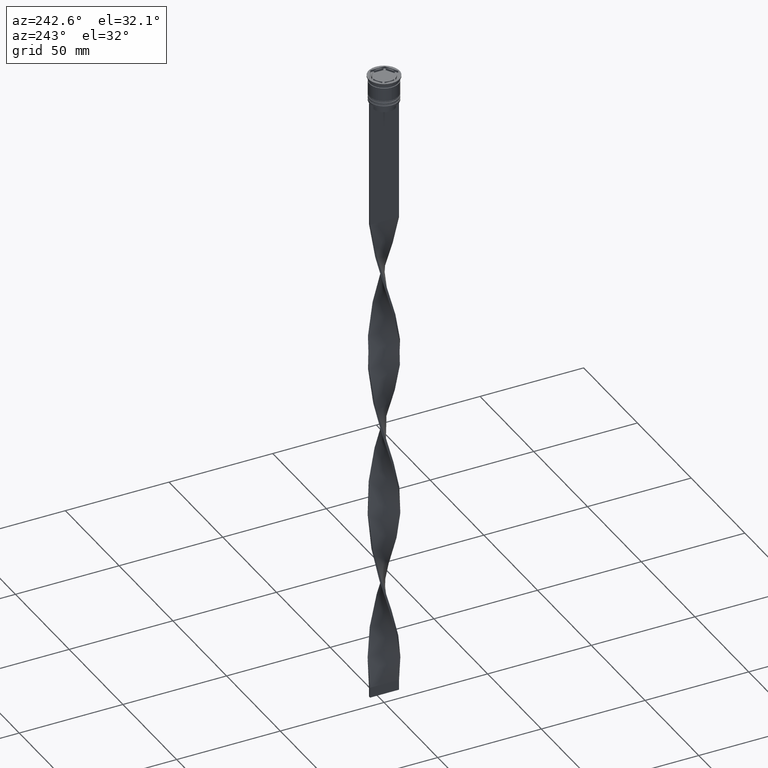
[diagram: clean part render]
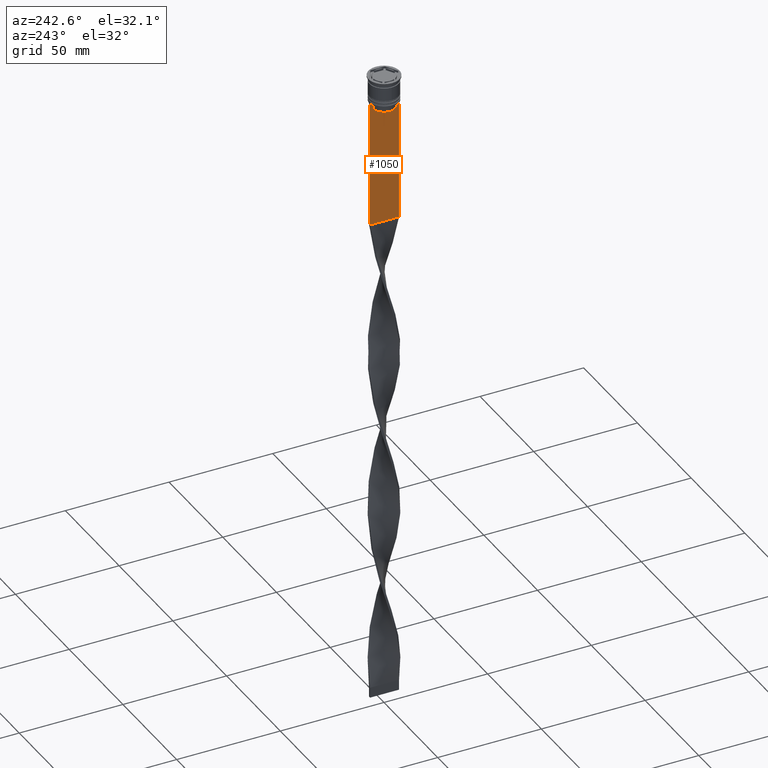
[diagram: same view with one face highlighted and labeled with its STEP entity id]
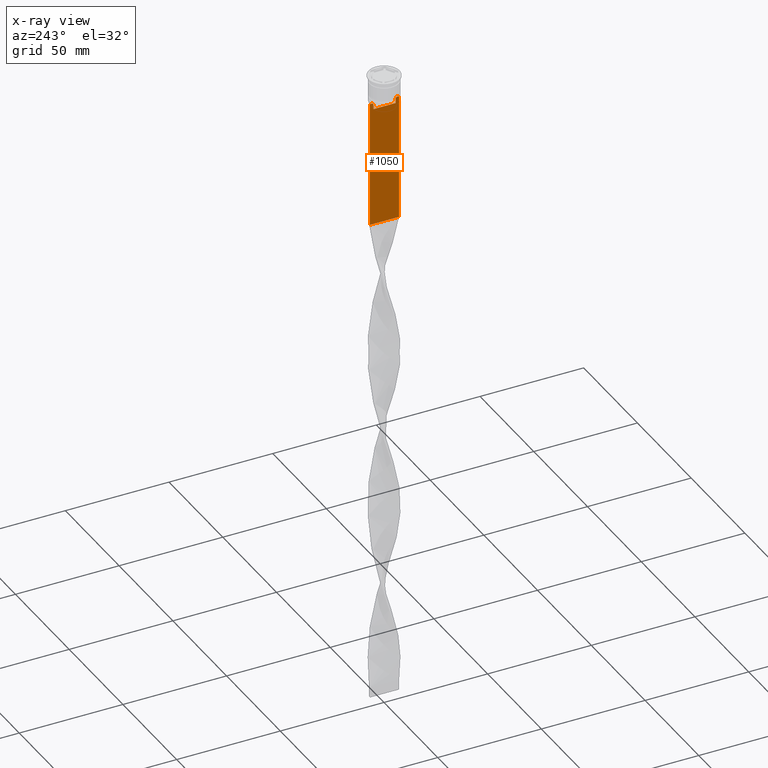
[diagram: x-ray of the same camera — body ghosted, the highlighted face saturated]
A machine part, auxiliary view. The second image highlights one B-rep face of the part: STEP entity #1050.
The next image is the same camera in x-ray: the body ghosted, the highlighted face saturated — about 0% of this face is hidden behind the body in this view.
In plain terms, the highlighted planar face has unit normal (-1, 0, 0).
Its self-contained STEP definition (entity closure, byte-faithful):
#34 = CARTESIAN_POINT ( 'NONE',  ( -0.5000000000000000000, -6.999999999999997335, -12.50000000000000000 ) ) ;
#41 = VERTEX_POINT ( 'NONE', #1005 ) ;
#118 = CARTESIAN_POINT ( 'NONE',  ( -0.5000000000000000000, -5.376802023508029826, -15.50000000000000000 ) ) ;
#153 = CARTESIAN_POINT ( 'NONE',  ( -0.5000000000000000000, -6.999999999999997335, 1.535668847618198329 ) ) ;
#210 = CARTESIAN_POINT ( 'NONE',  ( -0.5000000000000000000, 7.000000000000002665, -73.50000000000001421 ) ) ;
#217 = VERTEX_POINT ( 'NONE', #654 ) ;
#234 = EDGE_CURVE ( 'NONE', #829, #2222, #3152, .T. ) ;
#239 = VERTEX_POINT ( 'NONE', #4103 ) ;
#272 = DIRECTION ( 'NONE',  ( 0.000000000000000000, 1.000000000000000000, 0.000000000000000000 ) ) ;
#278 = ORIENTED_EDGE ( 'NONE', *, *, #234, .F. ) ;
#293 = LINE ( 'NONE', #2474, #2744 ) ;
#309 = VERTEX_POINT ( 'NONE', #1115 ) ;
#318 = DIRECTION ( 'NONE',  ( 0.000000000000000000, 0.000000000000000000, -1.000000000000000000 ) ) ;
#378 = VECTOR ( 'NONE', #2174, 1000.000000000000000 ) ;
#379 = ORIENTED_EDGE ( 'NONE', *, *, #2762, .F. ) ;
#422 = DIRECTION ( 'NONE',  ( -1.000000000000000000, 0.000000000000000000, 0.000000000000000000 ) ) ;
#525 = CARTESIAN_POINT ( 'NONE',  ( -0.5000000000000000000, -5.544156999454441959, -12.83336396790503642 ) ) ;
#548 = ORIENTED_EDGE ( 'NONE', *, *, #3273, .F. ) ;
#567 = EDGE_CURVE ( 'NONE', #702, #1053, #3036, .T. ) ;
#654 = CARTESIAN_POINT ( 'NONE',  ( -0.5000000000000000000, 7.000000000000002665, -12.50000000000000000 ) ) ;
#702 = VERTEX_POINT ( 'NONE', #3658 ) ;
#734 = B_SPLINE_CURVE_WITH_KNOTS ( 'NONE', 3,
 ( #3358, #525, #2723, #1777 ),
 .UNSPECIFIED., .F., .F.,
 ( 4, 4 ),
 ( 0.02539176325380714666, 0.02610162431828674801 ),
 .UNSPECIFIED. ) ;
#735 = FACE_OUTER_BOUND ( 'NONE', #3734, .T. ) ;
#761 = VECTOR ( 'NONE', #3349, 1000.000000000000000 ) ;
#829 = VERTEX_POINT ( 'NONE', #1189 ) ;
#842 = EDGE_CURVE ( 'NONE', #3542, #41, #3868, .T. ) ;
#895 = CARTESIAN_POINT ( 'NONE',  ( -0.5000000000000000000, -6.999999999999997335, -12.50000000000000000 ) ) ;
#1005 = CARTESIAN_POINT ( 'NONE',  ( -0.5000000000000000000, 5.376802023508029826, -13.00000000000000178 ) ) ;
#1050 = ADVANCED_FACE ( 'NONE', ( #735 ), #1714, .T. ) ;
#1053 = VERTEX_POINT ( 'NONE', #118 ) ;
#1115 = CARTESIAN_POINT ( 'NONE',  ( -0.5000000000000000000, -6.999999999999997335, -73.50000000000001421 ) ) ;
#1149 = CARTESIAN_POINT ( 'NONE',  ( -0.5000000000000000000, 5.711478846560141598, -12.66669470477064685 ) ) ;
#1189 = CARTESIAN_POINT ( 'NONE',  ( -0.5000000000000000000, -6.881860213634102053, -12.50000000000000000 ) ) ;
#1233 = DIRECTION ( 'NONE',  ( 0.000000000000000000, -1.000000000000000000, 0.000000000000000000 ) ) ;
#1399 = ORIENTED_EDGE ( 'NONE', *, *, #1908, .F. ) ;
#1609 = CARTESIAN_POINT ( 'NONE',  ( -0.5000000000000000000, -5.376802023508029826, 0.000000000000000000 ) ) ;
#1628 = EDGE_CURVE ( 'NONE', #217, #3090, #3651, .T. ) ;
#1683 = VECTOR ( 'NONE', #3769, 1000.000000000000000 ) ;
#1706 = DIRECTION ( 'NONE',  ( -0.000000000000000000, -0.000000000000000000, 1.000000000000000000 ) ) ;
#1714 = PLANE ( 'NONE',  #2066 ) ;
#1731 = VECTOR ( 'NONE', #3437, 1000.000000000000000 ) ;
#1777 = CARTESIAN_POINT ( 'NONE',  ( -0.5000000000000000000, -5.878775382679629402, -12.50000000000000000 ) ) ;
#1840 = LINE ( 'NONE', #1856, #1683 ) ;
#1855 = ORIENTED_EDGE ( 'NONE', *, *, #3417, .F. ) ;
#1856 = CARTESIAN_POINT ( 'NONE',  ( -0.5000000000000000000, 5.376802023508029826, 0.000000000000000000 ) ) ;
#1861 = CARTESIAN_POINT ( 'NONE',  ( -0.5000000000000000000, -5.376802023508029826, -13.00000000000000178 ) ) ;
#1908 = EDGE_CURVE ( 'NONE', #3698, #2071, #734, .T. ) ;
#1964 = CARTESIAN_POINT ( 'NONE',  ( -0.5000000000000000000, -6.999999999999997335, -12.50000000000000000 ) ) ;
#1978 = EDGE_CURVE ( 'NONE', #2071, #829, #2230, .T. ) ;
#2066 = AXIS2_PLACEMENT_3D ( 'NONE', #153, #422, #2947 ) ;
#2069 = CARTESIAN_POINT ( 'NONE',  ( -0.5000000000000000000, 5.878775382679629402, -12.50000000000000000 ) ) ;
#2071 = VERTEX_POINT ( 'NONE', #3707 ) ;
#2076 = CARTESIAN_POINT ( 'NONE',  ( -0.5000000000000000000, 7.000000000000002665, 1.535668847618198329 ) ) ;
#2082 = CARTESIAN_POINT ( 'NONE',  ( -0.5000000000000000000, 5.400000000000003908, -15.50000000000000000 ) ) ;
#2099 = ORIENTED_EDGE ( 'NONE', *, *, #1978, .F. ) ;
#2106 = CARTESIAN_POINT ( 'NONE',  ( -0.5000000000000000000, -6.999999999999997335, -73.50000000000001421 ) ) ;
#2120 = CARTESIAN_POINT ( 'NONE',  ( -0.5000000000000000000, 5.878775382679629402, -12.50000000000000000 ) ) ;
#2165 = ORIENTED_EDGE ( 'NONE', *, *, #4104, .F. ) ;
#2174 = DIRECTION ( 'NONE',  ( 0.000000000000000000, -1.000000000000000000, 0.000000000000000000 ) ) ;
#2222 = VERTEX_POINT ( 'NONE', #1964 ) ;
#2230 = LINE ( 'NONE', #3498, #3272 ) ;
#2456 = VECTOR ( 'NONE', #2698, 1000.000000000000000 ) ;
#2474 = CARTESIAN_POINT ( 'NONE',  ( -0.5000000000000000000, -6.999999999999997335, 1.535668847618198329 ) ) ;
#2613 = VECTOR ( 'NONE', #1233, 1000.000000000000000 ) ;
#2698 = DIRECTION ( 'NONE',  ( 0.000000000000000000, -1.000000000000000000, 0.000000000000000000 ) ) ;
#2723 = CARTESIAN_POINT ( 'NONE',  ( -0.5000000000000000000, -5.711478856069293286, -12.66669469529570335 ) ) ;
#2744 = VECTOR ( 'NONE', #318, 1000.000000000000000 ) ;
#2762 = EDGE_CURVE ( 'NONE', #217, #239, #2865, .T. ) ;
#2797 = ORIENTED_EDGE ( 'NONE', *, *, #3095, .F. ) ;
#2803 = CARTESIAN_POINT ( 'NONE',  ( -0.5000000000000000000, 5.376802023508029826, -13.00000000000000178 ) ) ;
#2807 = ORIENTED_EDGE ( 'NONE', *, *, #567, .F. ) ;
#2865 = LINE ( 'NONE', #34, #378 ) ;
#2947 = DIRECTION ( 'NONE',  ( 0.000000000000000000, 0.000000000000000000, 1.000000000000000000 ) ) ;
#3036 = LINE ( 'NONE', #2082, #2456 ) ;
#3090 = VERTEX_POINT ( 'NONE', #210 ) ;
#3095 = EDGE_CURVE ( 'NONE', #309, #3090, #3686, .T. ) ;
#3152 = LINE ( 'NONE', #895, #1731 ) ;
#3157 = ORIENTED_EDGE ( 'NONE', *, *, #3294, .F. ) ;
#3163 = CARTESIAN_POINT ( 'NONE',  ( -0.5000000000000000000, -6.999999999999997335, -12.50000000000000000 ) ) ;
#3183 = DIRECTION ( 'NONE',  ( 0.000000000000000000, -1.000000000000000000, 0.000000000000000000 ) ) ;
#3206 = ORIENTED_EDGE ( 'NONE', *, *, #842, .F. ) ;
#3209 = LINE ( 'NONE', #1609, #3345 ) ;
#3272 = VECTOR ( 'NONE', #3183, 1000.000000000000000 ) ;
#3273 = EDGE_CURVE ( 'NONE', #41, #702, #1840, .T. ) ;
#3294 = EDGE_CURVE ( 'NONE', #2222, #309, #293, .T. ) ;
#3345 = VECTOR ( 'NONE', #1706, 1000.000000000000000 ) ;
#3349 = DIRECTION ( 'NONE',  ( 0.000000000000000000, 0.000000000000000000, -1.000000000000000000 ) ) ;
#3351 = ORIENTED_EDGE ( 'NONE', *, *, #1628, .T. ) ;
#3358 = CARTESIAN_POINT ( 'NONE',  ( -0.5000000000000000000, -5.376802023508029826, -13.00000000000000178 ) ) ;
#3388 = LINE ( 'NONE', #3163, #2613 ) ;
#3417 = EDGE_CURVE ( 'NONE', #1053, #3698, #3209, .T. ) ;
#3437 = DIRECTION ( 'NONE',  ( 0.000000000000000000, -1.000000000000000000, 0.000000000000000000 ) ) ;
#3498 = CARTESIAN_POINT ( 'NONE',  ( -0.5000000000000000000, -6.999999999999997335, -12.50000000000000000 ) ) ;
#3542 = VERTEX_POINT ( 'NONE', #2069 ) ;
#3651 = LINE ( 'NONE', #2076, #761 ) ;
#3658 = CARTESIAN_POINT ( 'NONE',  ( -0.5000000000000000000, 5.376802023508029826, -15.50000000000000000 ) ) ;
#3686 = LINE ( 'NONE', #2106, #3951 ) ;
#3698 = VERTEX_POINT ( 'NONE', #1861 ) ;
#3707 = CARTESIAN_POINT ( 'NONE',  ( -0.5000000000000000000, -5.878775382679629402, -12.50000000000000000 ) ) ;
#3734 = EDGE_LOOP ( 'NONE', ( #3206, #2165, #379, #3351, #2797, #3157, #278, #2099, #1399, #1855, #2807, #548 ) ) ;
#3769 = DIRECTION ( 'NONE',  ( 0.000000000000000000, 0.000000000000000000, -1.000000000000000000 ) ) ;
#3868 = B_SPLINE_CURVE_WITH_KNOTS ( 'NONE', 3,
 ( #2120, #1149, #4026, #2803 ),
 .UNSPECIFIED., .F., .F.,
 ( 4, 4 ),
 ( 0.01003009312103698807, 0.01073859663834952557 ),
 .UNSPECIFIED. ) ;
#3951 = VECTOR ( 'NONE', #272, 1000.000000000000000 ) ;
#4026 = CARTESIAN_POINT ( 'NONE',  ( -0.5000000000000000000, 5.544156989057553275, -12.83336397825725861 ) ) ;
#4103 = CARTESIAN_POINT ( 'NONE',  ( -0.5000000000000000000, 6.881860213634102053, -12.50000000000000000 ) ) ;
#4104 = EDGE_CURVE ( 'NONE', #239, #3542, #3388, .T. ) ;